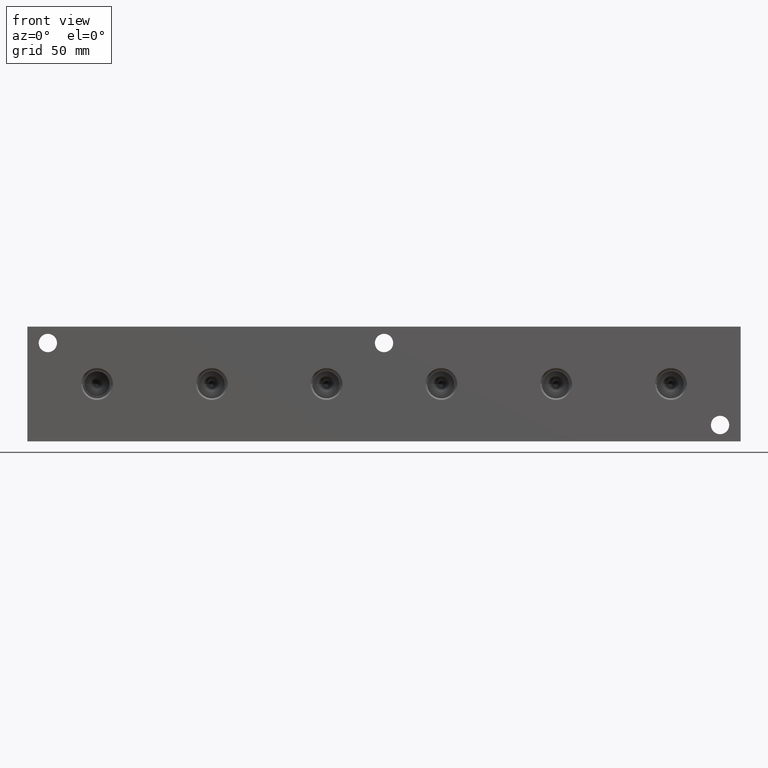
[diagram: clean part render]
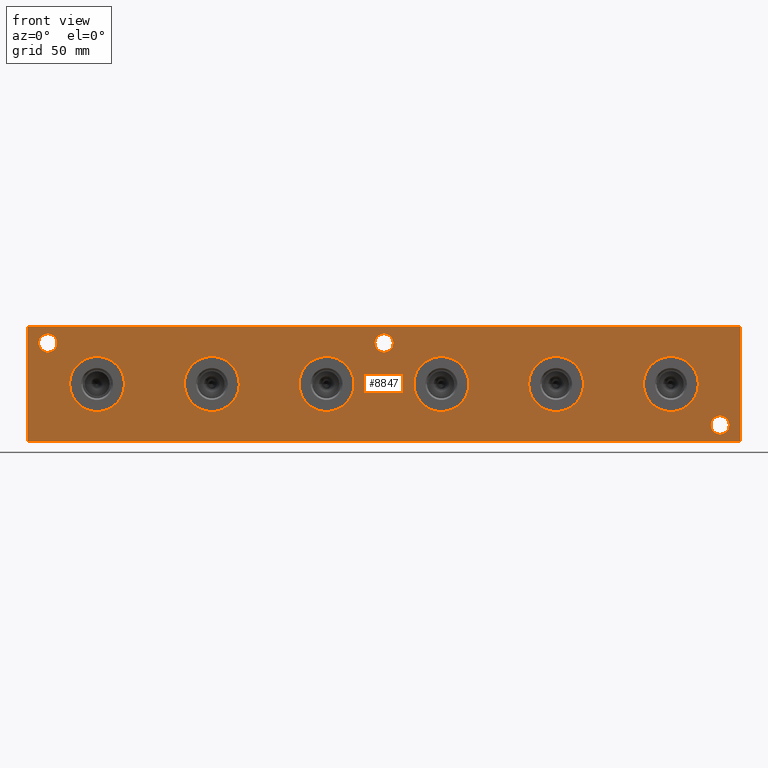
[diagram: same view with one face highlighted and labeled with its STEP entity id]
A machine part, front view. The second image highlights one B-rep face of the part: STEP entity #8847.
In plain terms, the highlighted planar face has unit normal (0, -1, 0).
Its self-contained STEP definition (entity closure, byte-faithful):
#257=CIRCLE('',#9184,10.6426);
#258=CIRCLE('',#9185,10.6426);
#262=CIRCLE('',#9201,10.6426);
#263=CIRCLE('',#9202,10.6426);
#267=CIRCLE('',#9210,10.6426);
#268=CIRCLE('',#9211,10.6426);
#272=CIRCLE('',#9227,10.6426);
#273=CIRCLE('',#9228,10.6426);
#277=CIRCLE('',#9244,10.6426);
#278=CIRCLE('',#9245,10.6426);
#282=CIRCLE('',#9261,10.6426);
#283=CIRCLE('',#9262,10.6426);
#372=CIRCLE('',#9422,3.5687);
#373=CIRCLE('',#9423,3.5687);
#375=CIRCLE('',#9432,3.5687);
#376=CIRCLE('',#9433,3.5687);
#378=CIRCLE('',#9441,3.5687);
#379=CIRCLE('',#9442,3.5687);
#449=FACE_BOUND('',#1793,.T.);
#450=FACE_BOUND('',#1794,.T.);
#451=FACE_BOUND('',#1795,.T.);
#452=FACE_BOUND('',#1796,.T.);
#453=FACE_BOUND('',#1797,.T.);
#454=FACE_BOUND('',#1798,.T.);
#455=FACE_BOUND('',#1799,.T.);
#456=FACE_BOUND('',#1800,.T.);
#457=FACE_BOUND('',#1801,.T.);
#1265=FACE_OUTER_BOUND('',#1792,.T.);
#1792=EDGE_LOOP('',(#7822,#7823,#7824,#7825));
#1793=EDGE_LOOP('',(#7826,#7827));
#1794=EDGE_LOOP('',(#7828,#7829));
#1795=EDGE_LOOP('',(#7830,#7831));
#1796=EDGE_LOOP('',(#7832,#7833));
#1797=EDGE_LOOP('',(#7834,#7835));
#1798=EDGE_LOOP('',(#7836,#7837));
#1799=EDGE_LOOP('',(#7838,#7839));
#1800=EDGE_LOOP('',(#7840,#7841));
#1801=EDGE_LOOP('',(#7842,#7843));
#2055=LINE('',#13747,#2810);
#2555=LINE('',#15425,#3310);
#2560=LINE('',#15434,#3315);
#2561=LINE('',#15436,#3316);
#2810=VECTOR('',#9829,10.);
#3310=VECTOR('',#11401,10.);
#3315=VECTOR('',#11410,10.);
#3316=VECTOR('',#11413,10.);
#3625=VERTEX_POINT('',#13745);
#3626=VERTEX_POINT('',#13746);
#3975=VERTEX_POINT('',#14894);
#3976=VERTEX_POINT('',#14895);
#3986=VERTEX_POINT('',#14926);
#3987=VERTEX_POINT('',#14927);
#3992=VERTEX_POINT('',#14944);
#3993=VERTEX_POINT('',#14945);
#4003=VERTEX_POINT('',#14976);
#4004=VERTEX_POINT('',#14977);
#4014=VERTEX_POINT('',#15008);
#4015=VERTEX_POINT('',#15009);
#4025=VERTEX_POINT('',#15040);
#4026=VERTEX_POINT('',#15041);
#4121=VERTEX_POINT('',#15356);
#4122=VERTEX_POINT('',#15357);
#4126=VERTEX_POINT('',#15374);
#4127=VERTEX_POINT('',#15375);
#4131=VERTEX_POINT('',#15390);
#4132=VERTEX_POINT('',#15391);
#4140=VERTEX_POINT('',#15423);
#4142=VERTEX_POINT('',#15432);
#4605=EDGE_CURVE('',#3625,#3626,#2055,.T.);
#5115=EDGE_CURVE('',#3975,#3976,#257,.T.);
#5116=EDGE_CURVE('',#3976,#3975,#258,.T.);
#5131=EDGE_CURVE('',#3986,#3987,#262,.T.);
#5132=EDGE_CURVE('',#3987,#3986,#263,.T.);
#5139=EDGE_CURVE('',#3992,#3993,#267,.T.);
#5140=EDGE_CURVE('',#3993,#3992,#268,.T.);
#5155=EDGE_CURVE('',#4003,#4004,#272,.T.);
#5156=EDGE_CURVE('',#4004,#4003,#273,.T.);
#5171=EDGE_CURVE('',#4014,#4015,#277,.T.);
#5172=EDGE_CURVE('',#4015,#4014,#278,.T.);
#5187=EDGE_CURVE('',#4025,#4026,#282,.T.);
#5188=EDGE_CURVE('',#4026,#4025,#283,.T.);
#5336=EDGE_CURVE('',#4121,#4122,#372,.T.);
#5337=EDGE_CURVE('',#4122,#4121,#373,.T.);
#5346=EDGE_CURVE('',#4126,#4127,#375,.T.);
#5347=EDGE_CURVE('',#4127,#4126,#376,.T.);
#5355=EDGE_CURVE('',#4131,#4132,#378,.T.);
#5356=EDGE_CURVE('',#4132,#4131,#379,.T.);
#5373=EDGE_CURVE('',#4140,#3625,#2555,.T.);
#5378=EDGE_CURVE('',#4142,#3626,#2560,.T.);
#5379=EDGE_CURVE('',#4140,#4142,#2561,.T.);
#7822=ORIENTED_EDGE('',*,*,#5379,.T.);
#7823=ORIENTED_EDGE('',*,*,#5378,.T.);
#7824=ORIENTED_EDGE('',*,*,#4605,.F.);
#7825=ORIENTED_EDGE('',*,*,#5373,.F.);
#7826=ORIENTED_EDGE('',*,*,#5115,.T.);
#7827=ORIENTED_EDGE('',*,*,#5116,.T.);
#7828=ORIENTED_EDGE('',*,*,#5131,.T.);
#7829=ORIENTED_EDGE('',*,*,#5132,.T.);
#7830=ORIENTED_EDGE('',*,*,#5139,.T.);
#7831=ORIENTED_EDGE('',*,*,#5140,.T.);
#7832=ORIENTED_EDGE('',*,*,#5155,.T.);
#7833=ORIENTED_EDGE('',*,*,#5156,.T.);
#7834=ORIENTED_EDGE('',*,*,#5171,.T.);
#7835=ORIENTED_EDGE('',*,*,#5172,.T.);
#7836=ORIENTED_EDGE('',*,*,#5187,.T.);
#7837=ORIENTED_EDGE('',*,*,#5188,.T.);
#7838=ORIENTED_EDGE('',*,*,#5336,.T.);
#7839=ORIENTED_EDGE('',*,*,#5337,.T.);
#7840=ORIENTED_EDGE('',*,*,#5346,.T.);
#7841=ORIENTED_EDGE('',*,*,#5347,.T.);
#7842=ORIENTED_EDGE('',*,*,#5355,.T.);
#7843=ORIENTED_EDGE('',*,*,#5356,.T.);
#8080=PLANE('',#9460);
#8847=ADVANCED_FACE('',(#1265,#449,#450,#451,#452,#453,#454,#455,#456,#457),
#8080,.T.);
#9184=AXIS2_PLACEMENT_3D('',#14896,#10762,#10763);
#9185=AXIS2_PLACEMENT_3D('',#14897,#10764,#10765);
#9201=AXIS2_PLACEMENT_3D('',#14928,#10800,#10801);
#9202=AXIS2_PLACEMENT_3D('',#14929,#10802,#10803);
#9210=AXIS2_PLACEMENT_3D('',#14946,#10821,#10822);
#9211=AXIS2_PLACEMENT_3D('',#14947,#10823,#10824);
#9227=AXIS2_PLACEMENT_3D('',#14978,#10859,#10860);
#9228=AXIS2_PLACEMENT_3D('',#14979,#10861,#10862);
#9244=AXIS2_PLACEMENT_3D('',#15010,#10897,#10898);
#9245=AXIS2_PLACEMENT_3D('',#15011,#10899,#10900);
#9261=AXIS2_PLACEMENT_3D('',#15042,#10935,#10936);
#9262=AXIS2_PLACEMENT_3D('',#15043,#10937,#10938);
#9422=AXIS2_PLACEMENT_3D('',#15358,#11316,#11317);
#9423=AXIS2_PLACEMENT_3D('',#15359,#11318,#11319);
#9432=AXIS2_PLACEMENT_3D('',#15376,#11339,#11340);
#9433=AXIS2_PLACEMENT_3D('',#15377,#11341,#11342);
#9441=AXIS2_PLACEMENT_3D('',#15392,#11359,#11360);
#9442=AXIS2_PLACEMENT_3D('',#15393,#11361,#11362);
#9460=AXIS2_PLACEMENT_3D('',#15435,#11411,#11412);
#9829=DIRECTION('',(1.,0.,0.));
#10762=DIRECTION('center_axis',(0.,1.,0.));
#10763=DIRECTION('ref_axis',(1.,0.,0.));
#10764=DIRECTION('center_axis',(0.,1.,0.));
#10765=DIRECTION('ref_axis',(1.,0.,0.));
#10800=DIRECTION('center_axis',(0.,1.,0.));
#10801=DIRECTION('ref_axis',(1.,0.,0.));
#10802=DIRECTION('center_axis',(0.,1.,0.));
#10803=DIRECTION('ref_axis',(1.,0.,0.));
#10821=DIRECTION('center_axis',(0.,1.,0.));
#10822=DIRECTION('ref_axis',(1.,0.,0.));
#10823=DIRECTION('center_axis',(0.,1.,0.));
#10824=DIRECTION('ref_axis',(1.,0.,0.));
#10859=DIRECTION('center_axis',(0.,1.,0.));
#10860=DIRECTION('ref_axis',(1.,0.,0.));
#10861=DIRECTION('center_axis',(0.,1.,0.));
#10862=DIRECTION('ref_axis',(1.,0.,0.));
#10897=DIRECTION('center_axis',(0.,1.,0.));
#10898=DIRECTION('ref_axis',(1.,0.,0.));
#10899=DIRECTION('center_axis',(0.,1.,0.));
#10900=DIRECTION('ref_axis',(1.,0.,0.));
#10935=DIRECTION('center_axis',(0.,1.,0.));
#10936=DIRECTION('ref_axis',(1.,0.,0.));
#10937=DIRECTION('center_axis',(0.,1.,0.));
#10938=DIRECTION('ref_axis',(1.,0.,0.));
#11316=DIRECTION('center_axis',(0.,1.,0.));
#11317=DIRECTION('ref_axis',(1.,0.,0.));
#11318=DIRECTION('center_axis',(0.,1.,0.));
#11319=DIRECTION('ref_axis',(1.,0.,0.));
#11339=DIRECTION('center_axis',(0.,1.,0.));
#11340=DIRECTION('ref_axis',(1.,0.,0.));
#11341=DIRECTION('center_axis',(0.,1.,0.));
#11342=DIRECTION('ref_axis',(1.,0.,0.));
#11359=DIRECTION('center_axis',(0.,1.,0.));
#11360=DIRECTION('ref_axis',(1.,0.,0.));
#11361=DIRECTION('center_axis',(0.,1.,0.));
#11362=DIRECTION('ref_axis',(1.,0.,0.));
#11401=DIRECTION('',(0.,0.,1.));
#11410=DIRECTION('',(0.,0.,1.));
#11411=DIRECTION('center_axis',(0.,-1.,0.));
#11412=DIRECTION('ref_axis',(1.,0.,0.));
#11413=DIRECTION('',(1.,0.,0.));
#13745=CARTESIAN_POINT('',(0.,0.,44.45));
#13746=CARTESIAN_POINT('',(276.225,0.,44.45));
#13747=CARTESIAN_POINT('',(0.,0.,44.45));
#14894=CARTESIAN_POINT('',(215.4174,0.,22.225));
#14895=CARTESIAN_POINT('',(194.1322,0.,22.225));
#14896=CARTESIAN_POINT('Origin',(204.7748,0.,22.225));
#14897=CARTESIAN_POINT('Origin',(204.7748,0.,22.225));
#14926=CARTESIAN_POINT('',(126.5174,0.,22.225));
#14927=CARTESIAN_POINT('',(105.2322,0.,22.225));
#14928=CARTESIAN_POINT('Origin',(115.8748,0.,22.225));
#14929=CARTESIAN_POINT('Origin',(115.8748,0.,22.225));
#14944=CARTESIAN_POINT('',(37.6174,0.,22.225));
#14945=CARTESIAN_POINT('',(16.3322,0.,22.225));
#14946=CARTESIAN_POINT('Origin',(26.9748,0.,22.225));
#14947=CARTESIAN_POINT('Origin',(26.9748,0.,22.225));
#14976=CARTESIAN_POINT('',(82.0674,0.,22.225));
#14977=CARTESIAN_POINT('',(60.7822,0.,22.225));
#14978=CARTESIAN_POINT('Origin',(71.4248,0.,22.225));
#14979=CARTESIAN_POINT('Origin',(71.4248,0.,22.225));
#15008=CARTESIAN_POINT('',(170.9674,0.,22.225));
#15009=CARTESIAN_POINT('',(149.6822,0.,22.225));
#15010=CARTESIAN_POINT('Origin',(160.3248,0.,22.225));
#15011=CARTESIAN_POINT('Origin',(160.3248,0.,22.225));
#15040=CARTESIAN_POINT('',(259.8674,0.,22.225));
#15041=CARTESIAN_POINT('',(238.5822,0.,22.225));
#15042=CARTESIAN_POINT('Origin',(249.2248,0.,22.225));
#15043=CARTESIAN_POINT('Origin',(249.2248,0.,22.225));
#15356=CARTESIAN_POINT('',(271.8435,0.,6.35));
#15357=CARTESIAN_POINT('',(264.7061,0.,6.35));
#15358=CARTESIAN_POINT('Origin',(268.2748,0.,6.35));
#15359=CARTESIAN_POINT('Origin',(268.2748,0.,6.35));
#15374=CARTESIAN_POINT('',(11.4935,0.,38.1));
#15375=CARTESIAN_POINT('',(4.3561,0.,38.1));
#15376=CARTESIAN_POINT('Origin',(7.9248,0.,38.1));
#15377=CARTESIAN_POINT('Origin',(7.9248,0.,38.1));
#15390=CARTESIAN_POINT('',(141.6939,0.,38.1));
#15391=CARTESIAN_POINT('',(134.5565,0.,38.1));
#15392=CARTESIAN_POINT('Origin',(138.1252,0.,38.1));
#15393=CARTESIAN_POINT('Origin',(138.1252,0.,38.1));
#15423=CARTESIAN_POINT('',(0.,0.,0.));
#15425=CARTESIAN_POINT('',(0.,0.,0.));
#15432=CARTESIAN_POINT('',(276.225,0.,0.));
#15434=CARTESIAN_POINT('',(276.225,0.,0.));
#15435=CARTESIAN_POINT('Origin',(0.,0.,0.));
#15436=CARTESIAN_POINT('',(0.,0.,0.));